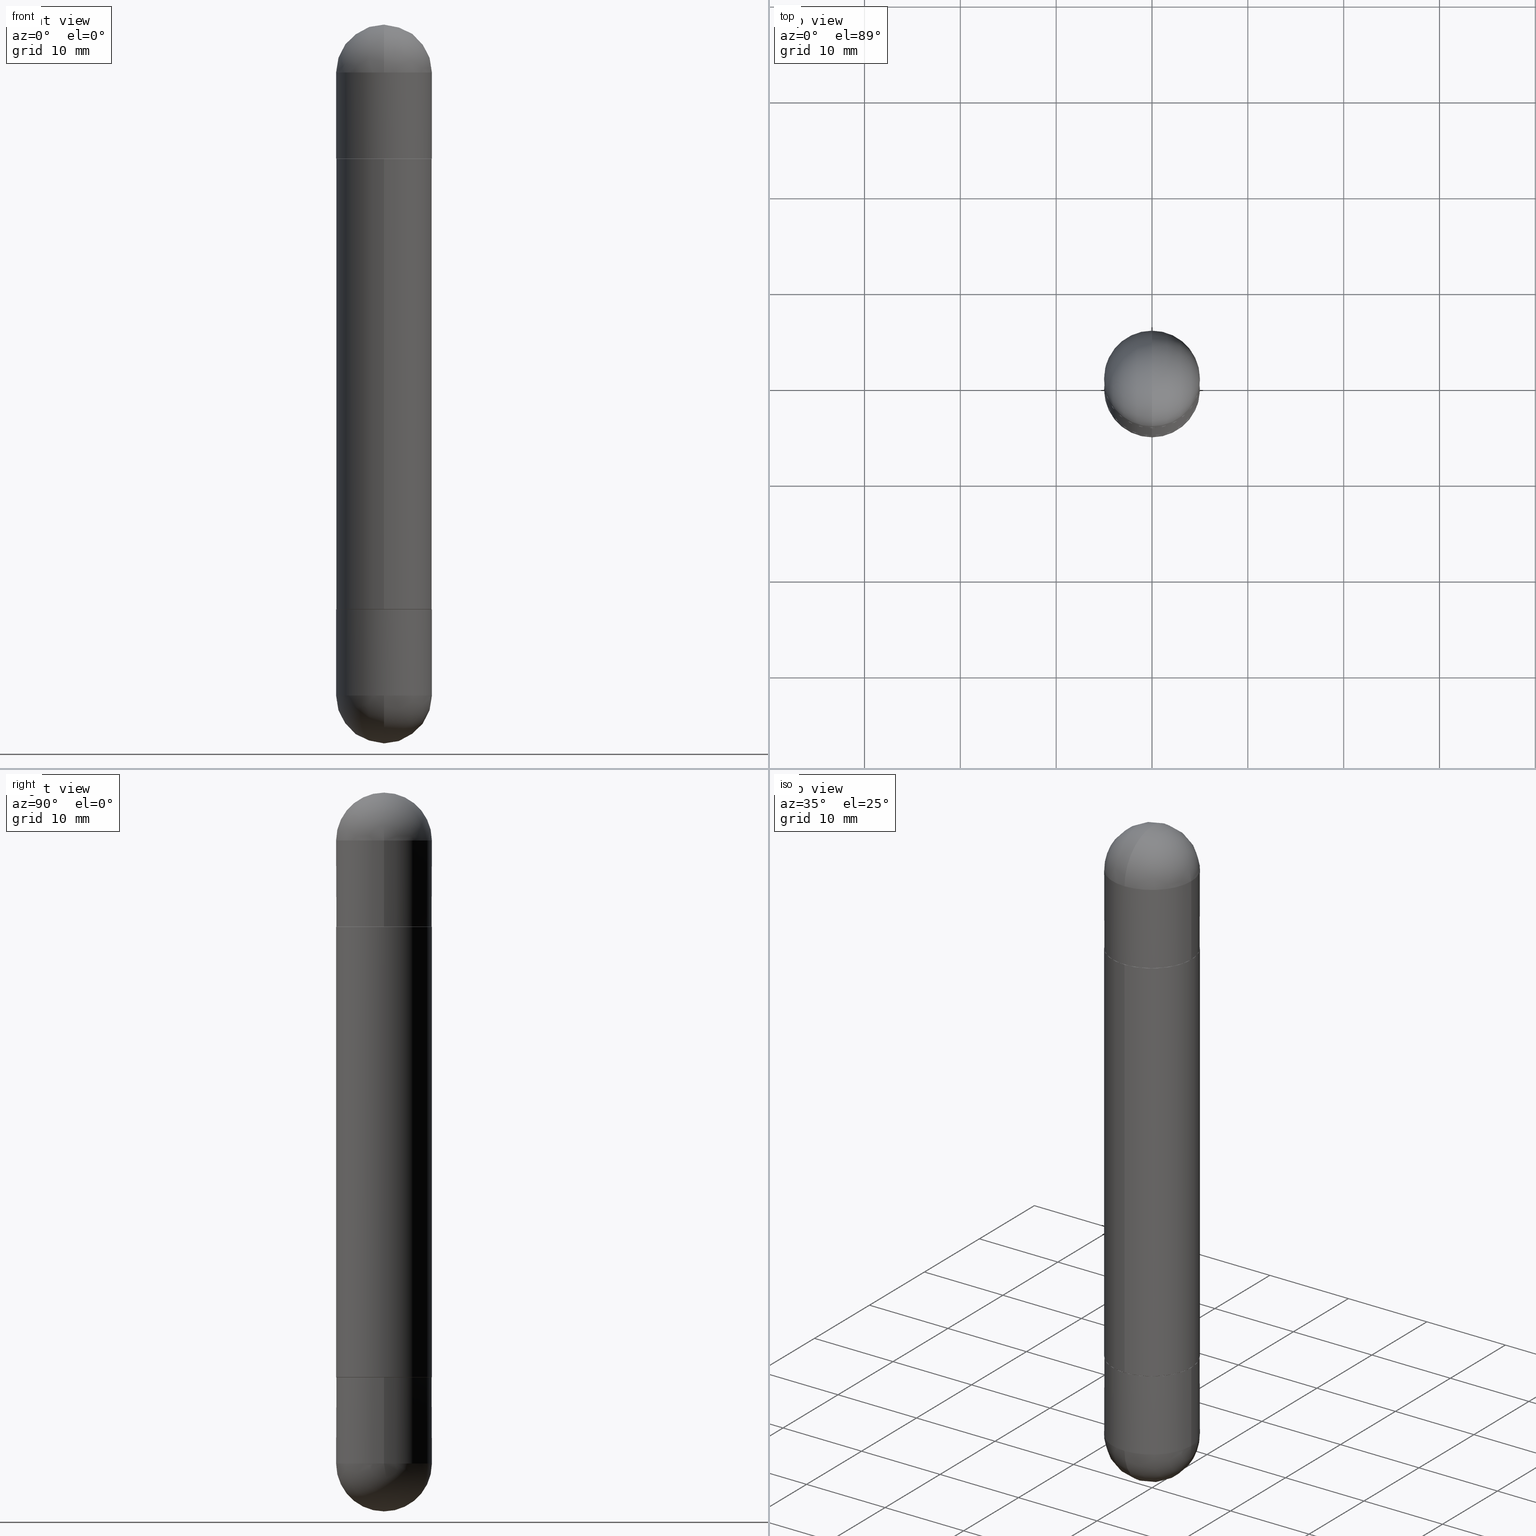
[diagram: canonical four-view strip — front | top / right | iso, engineering-drawing reading convention]
A machine part, canonical four-view strip (front | top / right | iso — engineering-drawing reading convention). The complete STEP part file that produces these views, byte-faithful:
ISO-10303-21;
HEADER;
FILE_DESCRIPTION (( 'STEP AP203' ),
    '1' );
FILE_NAME ('49002.STEP',
    '2024-03-01T12:50:12',
    ( '' ),
    ( '' ),
    'SwSTEP 2.0',
    'SolidWorks 2023',
    '' );
FILE_SCHEMA (( 'CONFIG_CONTROL_DESIGN' ));
ENDSEC;

DATA;
#1 = CIRCLE ( 'NONE', #315, 0.1958499999999999963 ) ;
#2 = DIRECTION ( 'NONE',  ( 1.000000000000000000, -6.982962677686266711E-15, 0.000000000000000000 ) ) ;
#3 = AXIS2_PLACEMENT_3D ( 'NONE', #754, #382, #304 ) ;
#4 = CIRCLE ( 'NONE', #82, 0.1968500000000001360 ) ;
#5 = VECTOR ( 'NONE', #93, 39.37007874015748854 ) ;
#6 = EDGE_LOOP ( 'NONE', ( #474, #777 ) ) ;
#7 = DIRECTION ( 'NONE',  ( -6.982962677686265922E-15, -1.000000000000000000, -3.487168743508122479E-15 ) ) ;
#8 = DIRECTION ( 'NONE',  ( -6.982962677686265922E-15, -1.000000000000000000, -3.487168743508122479E-15 ) ) ;
#9 = LINE ( 'NONE', #62, #702 ) ;
#10 = ORIENTED_EDGE ( 'NONE', *, *, #236, .T. ) ;
#11 = DIRECTION ( 'NONE',  ( -2.445468806185136597E-29, 3.491481338843145583E-15, 1.000000000000000000 ) ) ;
#12 = COORDINATED_UNIVERSAL_TIME_OFFSET ( 5, 0, .BEHIND. ) ;
#13 = DIRECTION ( 'NONE',  ( -2.445468806185136597E-29, 3.491481338843145583E-15, 1.000000000000000000 ) ) ;
#14 = AXIS2_PLACEMENT_3D ( 'NONE', #452, #387, #138 ) ;
#15 = ADVANCED_FACE ( 'NONE', ( #346 ), #608, .T. ) ;
#16 = VERTEX_POINT ( 'NONE', #668 ) ;
#17 = DIRECTION ( 'NONE',  ( 1.000000000000000000, -6.982962677686262766E-15, 0.000000000000000000 ) ) ;
#18 = PRODUCT_DEFINITION_SHAPE ( 'NONE', 'NONE',  #347 ) ;
#19 = ORIENTED_EDGE ( 'NONE', *, *, #199, .T. ) ;
#20 = PERSON_AND_ORGANIZATION ( #306, #429 ) ;
#21 = DIRECTION ( 'NONE',  ( -1.000000000000000000, 6.982962677686265922E-15, 4.883557194083112340E-29 ) ) ;
#22 = DIRECTION ( 'NONE',  ( -2.445468806185136597E-29, 3.491481338843145583E-15, 1.000000000000000000 ) ) ;
#23 = CC_DESIGN_PERSON_AND_ORGANIZATION_ASSIGNMENT ( #85, #323, ( #189 ) ) ;
#24 = CARTESIAN_POINT ( 'NONE',  ( 0.000000000000000000, 0.000000000000000000, -2.952799999999999869 ) ) ;
#25 = ADVANCED_FACE ( 'NONE', ( #168 ), #226, .T. ) ;
#26 = ORIENTED_EDGE ( 'NONE', *, *, #570, .F. ) ;
#27 = CONICAL_SURFACE ( 'NONE', #327, 0.1958499999999999963, 0.7853981633974311816 ) ;
#28 = EDGE_LOOP ( 'NONE', ( #690, #657, #328, #64 ) ) ;
#29 = AXIS2_PLACEMENT_3D ( 'NONE', #171, #601, #478 ) ;
#30 = PLANE ( 'NONE',  #539 ) ;
#31 = DIRECTION ( 'NONE',  ( -6.982962677686265922E-15, -1.000000000000000000, -3.487168743508122479E-15 ) ) ;
#32 = UNCERTAINTY_MEASURE_WITH_UNIT (LENGTH_MEASURE( 1.000000000000000082E-05 ), #71, 'distance_accuracy_value', 'NONE');
#33 = ORIENTED_EDGE ( 'NONE', *, *, #383, .F. ) ;
#34 = VERTEX_POINT ( 'NONE', #284 ) ;
#35 = ADVANCED_FACE ( 'NONE', ( #531 ), #468, .T. ) ;
#36 = CARTESIAN_POINT ( 'NONE',  ( 6.739589756405927064E-29, -9.622347995784766935E-15, -0.1968499999999998307 ) ) ;
#37 = ORIENTED_EDGE ( 'NONE', *, *, #471, .F. ) ;
#38 = AXIS2_PLACEMENT_3D ( 'NONE', #672, #102, #356 ) ;
#39 = CIRCLE ( 'NONE', #129, 0.1968500000000000527 ) ;
#40 = EDGE_CURVE ( 'NONE', #300, #729, #454, .T. ) ;
#41 = CARTESIAN_POINT ( 'NONE',  ( 0.000000000000000000, 0.000000000000000000, 0.000000000000000000 ) ) ;
#42 = EDGE_LOOP ( 'NONE', ( #281, #613, #626, #185 ) ) ;
#43 = AXIS2_PLACEMENT_3D ( 'NONE', #473, #735, #170 ) ;
#44 = DIRECTION ( 'NONE',  ( -2.445122675538663184E-29, 3.491977017629428547E-15, -1.000000000000000000 ) ) ;
#45 = EDGE_LOOP ( 'NONE', ( #262, #402, #817, #730 ) ) ;
#46 = CARTESIAN_POINT ( 'NONE',  ( 5.873037884934223228E-29, -8.385141583365697263E-15, -0.5512000000000001343 ) ) ;
#47 = FACE_OUTER_BOUND ( 'NONE', #28, .T. ) ;
#48 = EDGE_LOOP ( 'NONE', ( #227, #671, #477, #475 ) ) ;
#49 = ORIENTED_EDGE ( 'NONE', *, *, #195, .T. ) ;
#50 = EDGE_CURVE ( 'NONE', #412, #401, #192, .T. ) ;
#51 = ORIENTED_EDGE ( 'NONE', *, *, #523, .F. ) ;
#52 = LINE ( 'NONE', #296, #713 ) ;
#53 = DIRECTION ( 'NONE',  ( 1.000000000000000000, -6.982962677686265922E-15, 4.883557194083112340E-29 ) ) ;
#54 = SPHERICAL_SURFACE ( 'NONE', #74, 0.1968500000000001915 ) ;
#55 = EDGE_LOOP ( 'NONE', ( #797, #791, #165, #136 ) ) ;
#56 = EDGE_CURVE ( 'NONE', #682, #611, #526, .T. ) ;
#57 = EDGE_LOOP ( 'NONE', ( #350, #341, #720, #472 ) ) ;
#58 = EDGE_LOOP ( 'NONE', ( #228, #175, #51, #49, #795 ) ) ;
#59 = DIRECTION ( 'NONE',  ( 0.000000000000000000, 0.000000000000000000, 1.000000000000000000 ) ) ;
#60 = ORIENTED_EDGE ( 'NONE', *, *, #305, .T. ) ;
#61 = VECTOR ( 'NONE', #699, 39.37007874015748143 ) ;
#62 = CARTESIAN_POINT ( 'NONE',  ( 1.343628532863613179E-15, 0.1958499999999916141, -0.5511999999999991351 ) ) ;
#63 = ORIENTED_EDGE ( 'NONE', *, *, #422, .T. ) ;
#64 = ORIENTED_EDGE ( 'NONE', *, *, #581, .T. ) ;
#65 = FACE_OUTER_BOUND ( 'NONE', #223, .T. ) ;
#66 = EDGE_CURVE ( 'NONE', #729, #300, #491, .T. ) ;
#67 = FACE_OUTER_BOUND ( 'NONE', #560, .T. ) ;
#68 = ADVANCED_FACE ( 'NONE', ( #240 ), #150, .T. ) ;
#69 = DIRECTION ( 'NONE',  ( 1.000000000000000000, -6.982962677686266711E-15, 0.000000000000000000 ) ) ;
#70 = VERTEX_POINT ( 'NONE', #212 ) ;
#71 =( CONVERSION_BASED_UNIT ( 'INCH', #487 ) LENGTH_UNIT ( ) NAMED_UNIT ( #373 ) );
#72 = CYLINDRICAL_SURFACE ( 'NONE', #582, 0.1968500000000001360 ) ;
#73 = AXIS2_PLACEMENT_3D ( 'NONE', #561, #818, #123 ) ;
#74 = AXIS2_PLACEMENT_3D ( 'NONE', #124, #193, #431 ) ;
#75 = AXIS2_PLACEMENT_3D ( 'NONE', #612, #180, #592 ) ;
#76 = CYLINDRICAL_SURFACE ( 'NONE', #299, 0.1968500000000000527 ) ;
#77 = PERSON_AND_ORGANIZATION ( #306, #429 ) ;
#78 = DIRECTION ( 'NONE',  ( -6.982962677686265922E-15, -1.000000000000000000, -3.487168743508122479E-15 ) ) ;
#79 = PERSON_AND_ORGANIZATION ( #306, #429 ) ;
#80 = DIRECTION ( 'NONE',  ( 1.000000000000000000, -6.982962677686266711E-15, 0.000000000000000000 ) ) ;
#81 = VECTOR ( 'NONE', #575, 39.37007874015748143 ) ;
#82 = AXIS2_PLACEMENT_3D ( 'NONE', #665, #421, #799 ) ;
#83 = CIRCLE ( 'NONE', #73, 0.1968500000000001915 ) ;
#84 = ORIENTED_EDGE ( 'NONE', *, *, #139, .T. ) ;
#85 = PERSON_AND_ORGANIZATION ( #306, #429 ) ;
#86 = CARTESIAN_POINT ( 'NONE',  ( 0.000000000000000000, 0.000000000000000000, -2.952799999999999869 ) ) ;
#87 = EDGE_LOOP ( 'NONE', ( #695, #692, #310, #800, #535 ) ) ;
#88 = EDGE_CURVE ( 'NONE', #660, #519, #127, .T. ) ;
#89 = CARTESIAN_POINT ( 'NONE',  ( 6.739589756405927064E-29, -9.622347995784766935E-15, -2.755949999999999900 ) ) ;
#90 = EDGE_LOOP ( 'NONE', ( #154, #120, #462, #733, #617 ) ) ;
#91 = DIRECTION ( 'NONE',  ( 1.000000000000000000, -6.982962677686262766E-15, 0.000000000000000000 ) ) ;
#92 = AXIS2_PLACEMENT_3D ( 'NONE', #378, #558, #638 ) ;
#93 = DIRECTION ( 'NONE',  ( -4.937700262164462845E-15, -0.7071067811865329178, -0.7071067811865620056 ) ) ;
#94 = DIRECTION ( 'NONE',  ( 4.851104656540880656E-15, 0.7071067811865378028, -0.7071067811865571207 ) ) ;
#95 = CARTESIAN_POINT ( 'NONE',  ( -1.374596203102542397E-15, -0.1968500000000001360, -2.952800000000000313 ) ) ;
#96 = DIRECTION ( 'NONE',  ( 1.000000000000000000, -6.982962677686266711E-15, 0.000000000000000000 ) ) ;
#97 = ORIENTED_EDGE ( 'NONE', *, *, #427, .F. ) ;
#98 = DIRECTION ( 'NONE',  ( 2.445468806185136597E-29, -3.491481338843145583E-15, 1.000000000000000000 ) ) ;
#99 = ORIENTED_EDGE ( 'NONE', *, *, #585, .F. ) ;
#100 = AXIS2_PLACEMENT_3D ( 'NONE', #573, #542, #808 ) ;
#101 = CIRCLE ( 'NONE', #455, 0.1968500000000000527 ) ;
#102 = DIRECTION ( 'NONE',  ( 1.000000000000000000, -6.860497997771530774E-15, -4.840798879624142912E-29 ) ) ;
#103 = DIRECTION ( 'NONE',  ( 1.000000000000000000, -6.982962677686265922E-15, -4.883557194083112340E-29 ) ) ;
#104 = AXIS2_PLACEMENT_3D ( 'NONE', #330, #460, #806 ) ;
#105 = FACE_OUTER_BOUND ( 'NONE', #153, .T. ) ;
#106 = APPROVAL ( #200, 'UNSPECIFIED' ) ;
#107 = DIRECTION ( 'NONE',  ( -6.982962677686265133E-15, -1.000000000000000000, 4.163344669033668535E-15 ) ) ;
#108 = EDGE_CURVE ( 'NONE', #497, #464, #753, .T. ) ;
#109 = CARTESIAN_POINT ( 'NONE',  ( 1.350489030861326809E-15, 0.1968500000000001360, -2.952799999999998981 ) ) ;
#110 = DIRECTION ( 'NONE',  ( -2.445468806185136597E-29, 3.491481338843145583E-15, 1.000000000000000000 ) ) ;
#111 = EDGE_LOOP ( 'NONE', ( #517, #99 ) ) ;
#112 = VERTEX_POINT ( 'NONE', #133 ) ;
#113 = EDGE_LOOP ( 'NONE', ( #174, #775, #205, #122 ) ) ;
#114 = CYLINDRICAL_SURFACE ( 'NONE', #621, 0.1968500000000000527 ) ;
#115 = EDGE_LOOP ( 'NONE', ( #140, #750 ) ) ;
#116 = FACE_OUTER_BOUND ( 'NONE', #57, .T. ) ;
#117 = AXIS2_PLACEMENT_3D ( 'NONE', #470, #282, #343 ) ;
#118 = APPROVAL_PERSON_ORGANIZATION ( #79, #433, #572 ) ;
#119 = CARTESIAN_POINT ( 'NONE',  ( 3.609979118165281973E-29, -5.155554868828087801E-15, -1.476399999999999935 ) ) ;
#120 = ORIENTED_EDGE ( 'NONE', *, *, #637, .T. ) ;
#121 = CARTESIAN_POINT ( 'NONE',  ( 0.000000000000000000, 0.000000000000000000, -1.476399999999999935 ) ) ;
#122 = ORIENTED_EDGE ( 'NONE', *, *, #383, .T. ) ;
#123 = DIRECTION ( 'NONE',  ( -6.982962677686265133E-15, -1.000000000000000000, 0.000000000000000000 ) ) ;
#124 = CARTESIAN_POINT ( 'NONE',  ( 6.408469978492040817E-29, -1.009653036392481565E-14, -0.1968499999999998307 ) ) ;
#125 = FACE_OUTER_BOUND ( 'NONE', #48, .T. ) ;
#126 = DIRECTION ( 'NONE',  ( -4.937700262164462845E-15, -0.7071067811865329178, 0.7071067811865620056 ) ) ;
#127 = CIRCLE ( 'NONE', #609, 0.1968500000000003303 ) ;
#128 = CARTESIAN_POINT ( 'NONE',  ( -0.1968500000000000527, -7.605041414231473522E-15, -2.755949999999999900 ) ) ;
#129 = AXIS2_PLACEMENT_3D ( 'NONE', #546, #98, #177 ) ;
#130 = AXIS2_PLACEMENT_3D ( 'NONE', #683, #501, #7 ) ;
#131 = CC_DESIGN_PERSON_AND_ORGANIZATION_ASSIGNMENT ( #579, #525, ( #189 ) ) ;
#132 = SECURITY_CLASSIFICATION_LEVEL ( 'unclassified' ) ;
#133 = CARTESIAN_POINT ( 'NONE',  ( 1.374596203102607873E-15, 0.1968499999999902550, -0.1968499999999991645 ) ) ;
#134 = EDGE_CURVE ( 'NONE', #660, #298, #312, .T. ) ;
#135 = DIRECTION ( 'NONE',  ( -1.000000000000000000, 6.982962677686265922E-15, -4.883557194083112340E-29 ) ) ;
#136 = ORIENTED_EDGE ( 'NONE', *, *, #747, .F. ) ;
#137 = MECHANICAL_CONTEXT ( 'NONE', #614, 'mechanical' ) ;
#138 = DIRECTION ( 'NONE',  ( 6.982962677686265922E-15, 1.000000000000000000, 3.469453890861392812E-15 ) ) ;
#139 = EDGE_CURVE ( 'NONE', #464, #497, #255, .T. ) ;
#140 = ORIENTED_EDGE ( 'NONE', *, *, #670, .T. ) ;
#141 = DATE_AND_TIME ( #704, #381 ) ;
#142 = PRODUCT ( '49002', '49002', '', ( #137 ) ) ;
#143 = CARTESIAN_POINT ( 'NONE',  ( 1.350489030861385580E-15, 0.1968499999999950012, -1.476399999999999935 ) ) ;
#144 = CIRCLE ( 'NONE', #100, 0.1968500000000000527 ) ;
#145 = AXIS2_PLACEMENT_3D ( 'NONE', #773, #769, #80 ) ;
#146 = EDGE_CURVE ( 'NONE', #552, #396, #144, .T. ) ;
#147 = LOCAL_TIME ( 7, 50, 12.00000000000000000, #590 ) ;
#148 = ORIENTED_EDGE ( 'NONE', *, *, #134, .F. ) ;
#149 = VERTEX_POINT ( 'NONE', #741 ) ;
#150 = CONICAL_SURFACE ( 'NONE', #740, 0.1958499999999999963, 0.7853981633974311816 ) ;
#151 = APPROVAL_STATUS ( 'not_yet_approved' ) ;
#152 = CARTESIAN_POINT ( 'NONE',  ( 6.898277487190832498E-29, -1.077177487935548192E-14, -2.952800000000000313 ) ) ;
#153 = EDGE_LOOP ( 'NONE', ( #515, #424, #33, #442 ) ) ;
#154 = ORIENTED_EDGE ( 'NONE', *, *, #234, .F. ) ;
#155 = EDGE_CURVE ( 'NONE', #220, #680, #230, .T. ) ;
#156 = SPHERICAL_SURFACE ( 'NONE', #339, 0.1968500000000001915 ) ;
#157 = ORIENTED_EDGE ( 'NONE', *, *, #687, .F. ) ;
#158 = CARTESIAN_POINT ( 'NONE',  ( 6.739589756405927064E-29, -9.622347995784766935E-15, -0.1968499999999998307 ) ) ;
#159 = DIRECTION ( 'NONE',  ( -2.445122675538663184E-29, 3.491977017629428547E-15, -1.000000000000000000 ) ) ;
#160 = VECTOR ( 'NONE', #337, 39.37007874015748143 ) ;
#161 = DIRECTION ( 'NONE',  ( 1.000000000000000000, -6.982962677686266711E-15, 0.000000000000000000 ) ) ;
#162 = LINE ( 'NONE', #232, #495 ) ;
#163 = EDGE_CURVE ( 'NONE', #270, #624, #162, .T. ) ;
#164 = DIRECTION ( 'NONE',  ( -2.445468806185136597E-29, 3.491481338843145583E-15, -1.000000000000000000 ) ) ;
#165 = ORIENTED_EDGE ( 'NONE', *, *, #206, .F. ) ;
#166 = DIRECTION ( 'NONE',  ( 2.445468806185136597E-29, -3.491481338843145583E-15, 1.000000000000000000 ) ) ;
#167 = DIRECTION ( 'NONE',  ( -2.445468806185136877E-29, 3.491481338843145188E-15, -1.000000000000000000 ) ) ;
#168 = FACE_OUTER_BOUND ( 'NONE', #411, .T. ) ;
#169 = ORIENTED_EDGE ( 'NONE', *, *, #248, .T. ) ;
#170 = DIRECTION ( 'NONE',  ( 1.000000000000000000, -6.982962677686262766E-15, 0.000000000000000000 ) ) ;
#171 = CARTESIAN_POINT ( 'NONE',  ( 5.873037884934223228E-29, -8.385141583365697263E-15, -0.5512000000000001343 ) ) ;
#172 = VERTEX_POINT ( 'NONE', #652 ) ;
#173 = EDGE_CURVE ( 'NONE', #149, #256, #722, .T. ) ;
#174 = ORIENTED_EDGE ( 'NONE', *, *, #678, .F. ) ;
#175 = ORIENTED_EDGE ( 'NONE', *, *, #628, .F. ) ;
#176 = CIRCLE ( 'NONE', #635, 0.1968500000000003303 ) ;
#177 = DIRECTION ( 'NONE',  ( 1.000000000000000000, -6.982962677686266711E-15, 0.000000000000000000 ) ) ;
#178 = CARTESIAN_POINT ( 'NONE',  ( 6.408469978492040817E-29, -1.009653036392481565E-14, -0.1968499999999998307 ) ) ;
#179 = CIRCLE ( 'NONE', #646, 0.1968500000000001915 ) ;
#180 = DIRECTION ( 'NONE',  ( -2.445122675538663184E-29, 3.491977017629428547E-15, 1.000000000000000000 ) ) ;
#181 = CARTESIAN_POINT ( 'NONE',  ( 5.872206617573653302E-29, -8.386332005538834175E-15, -0.5511999999999998012 ) ) ;
#182 = FACE_OUTER_BOUND ( 'NONE', #111, .T. ) ;
#183 = EDGE_CURVE ( 'NONE', #680, #270, #458, .T. ) ;
#184 = DIRECTION ( 'NONE',  ( -2.445122675538662904E-29, 3.491977017629428547E-15, -1.000000000000000000 ) ) ;
#185 = ORIENTED_EDGE ( 'NONE', *, *, #88, .T. ) ;
#186 = CARTESIAN_POINT ( 'NONE',  ( 0.1968500000000000527, -1.037834099267777529E-14, -0.1968499999999998307 ) ) ;
#187 = FACE_OUTER_BOUND ( 'NONE', #804, .T. ) ;
#188 = CIRCLE ( 'NONE', #29, 0.1968500000000000250 ) ;
#189 = PRODUCT_DEFINITION_FORMATION_WITH_SPECIFIED_SOURCE ( 'ANY', '', #142, .NOT_KNOWN. ) ;
#190 = DIRECTION ( 'NONE',  ( 5.024295867787975615E-15, 0.7071067811865378028, 0.7071067811865571207 ) ) ;
#191 = EDGE_CURVE ( 'NONE', #389, #298, #595, .T. ) ;
#192 = CIRCLE ( 'NONE', #355, 0.1968500000000001915 ) ;
#193 = DIRECTION ( 'NONE',  ( 1.000000000000000000, -6.982962677686265922E-15, -4.883557194083112340E-29 ) ) ;
#194 = DIRECTION ( 'NONE',  ( 4.851104656540880656E-15, 0.7071067811865378028, -0.7071067811865571207 ) ) ;
#195 = EDGE_CURVE ( 'NONE', #34, #300, #52, .T. ) ;
#196 = LINE ( 'NONE', #438, #241 ) ;
#197 = DIRECTION ( 'NONE',  ( 2.445122675538663184E-29, -3.491977017629428547E-15, 1.000000000000000000 ) ) ;
#198 = CARTESIAN_POINT ( 'NONE',  ( 1.391597947986214761E-15, 0.1958499999999916141, -2.401600000000000623 ) ) ;
#199 = EDGE_CURVE ( 'NONE', #363, #149, #214, .T. ) ;
#200 = APPROVAL_STATUS ( 'not_yet_approved' ) ;
#201 = VECTOR ( 'NONE', #375, 39.37007874015748854 ) ;
#202 = FACE_OUTER_BOUND ( 'NONE', #45, .T. ) ;
#203 = AXIS2_PLACEMENT_3D ( 'NONE', #685, #625, #307 ) ;
#204 = DIRECTION ( 'NONE',  ( -2.445468806185136597E-29, 3.491481338843145583E-15, 1.000000000000000000 ) ) ;
#205 = ORIENTED_EDGE ( 'NONE', *, *, #134, .T. ) ;
#206 = EDGE_CURVE ( 'NONE', #353, #408, #416, .T. ) ;
#207 = APPLICATION_PROTOCOL_DEFINITION ( 'international standard', 'config_control_design', 1994, #222 ) ;
#208 = DIRECTION ( 'NONE',  ( -2.445468806185136597E-29, 3.491481338843145583E-15, 1.000000000000000000 ) ) ;
#209 = EDGE_CURVE ( 'NONE', #624, #437, #785, .T. ) ;
#210 = DESIGN_CONTEXT ( 'detailed design', #222, 'design' ) ;
#211 = ADVANCED_FACE ( 'NONE', ( #105 ), #379, .T. ) ;
#212 = CARTESIAN_POINT ( 'NONE',  ( 1.395150661665017040E-15, 0.1958499999999916141, -2.401600000000000623 ) ) ;
#213 = CYLINDRICAL_SURFACE ( 'NONE', #467, 0.1968500000000001360 ) ;
#214 = CIRCLE ( 'NONE', #239, 0.1958499999999999963 ) ;
#215 = AXIS2_PLACEMENT_3D ( 'NONE', #278, #273, #522 ) ;
#216 = ORIENTED_EDGE ( 'NONE', *, *, #584, .T. ) ;
#217 = AXIS2_PLACEMENT_3D ( 'NONE', #302, #738, #107 ) ;
#218 = SPHERICAL_SURFACE ( 'NONE', #14, 0.1968500000000001915 ) ;
#219 = EDGE_CURVE ( 'NONE', #519, #660, #351, .T. ) ;
#220 = VERTEX_POINT ( 'NONE', #392 ) ;
#221 = DIRECTION ( 'NONE',  ( 2.445122675538663184E-29, -3.491977017629428547E-15, 1.000000000000000000 ) ) ;
#222 = APPLICATION_CONTEXT ( 'configuration controlled 3d designs of mechanical parts and assemblies' ) ;
#223 = EDGE_LOOP ( 'NONE', ( #569, #749, #286, #148 ) ) ;
#224 = EDGE_CURVE ( 'NONE', #220, #552, #179, .T. ) ;
#225 = CARTESIAN_POINT ( 'NONE',  ( 5.869761494898114064E-29, -8.382840028521204058E-15, -0.5522000000000002462 ) ) ;
#226 = SPHERICAL_SURFACE ( 'NONE', #540, 0.1968500000000001915 ) ;
#227 = ORIENTED_EDGE ( 'NONE', *, *, #360, .F. ) ;
#228 = ORIENTED_EDGE ( 'NONE', *, *, #637, .F. ) ;
#229 =( GEOMETRIC_REPRESENTATION_CONTEXT ( 3 ) GLOBAL_UNCERTAINTY_ASSIGNED_CONTEXT ( ( #32 ) ) GLOBAL_UNIT_ASSIGNED_CONTEXT ( ( #71, #252, #551 ) ) REPRESENTATION_CONTEXT ( 'NONE', 'WORKASPACE' ) );
#230 = CIRCLE ( 'NONE', #562, 0.1968500000000001915 ) ;
#231 = LINE ( 'NONE', #109, #482 ) ;
#232 = CARTESIAN_POINT ( 'NONE',  ( 0.1968500000000000527, -1.374596203102542003E-15, -2.952799999999999869 ) ) ;
#233 = MANIFOLD_SOLID_BREP ( 'Mirror4[1]', #744 ) ;
#234 = EDGE_CURVE ( 'NONE', #243, #611, #289, .T. ) ;
#235 = PLANE ( 'NONE',  #742 ) ;
#236 = EDGE_CURVE ( 'NONE', #270, #552, #480, .T. ) ;
#237 = CARTESIAN_POINT ( 'NONE',  ( 5.872206617573653302E-29, -8.386332005538834175E-15, -2.401599999999999735 ) ) ;
#238 = DIRECTION ( 'NONE',  ( 1.000000000000000000, -6.982962677686266711E-15, 0.000000000000000000 ) ) ;
#239 = AXIS2_PLACEMENT_3D ( 'NONE', #600, #333, #31 ) ;
#240 = FACE_OUTER_BOUND ( 'NONE', #42, .T. ) ;
#241 = VECTOR ( 'NONE', #483, 39.37007874015748143 ) ;
#242 = DIRECTION ( 'NONE',  ( -1.000000000000000000, 0.000000000000000000, 0.000000000000000000 ) ) ;
#243 = VERTEX_POINT ( 'NONE', #598 ) ;
#244 = CARTESIAN_POINT ( 'NONE',  ( 6.739589756405927064E-29, -9.622347995784766935E-15, -2.755949999999999900 ) ) ;
#245 = ORIENTED_EDGE ( 'NONE', *, *, #224, .T. ) ;
#246 = EDGE_LOOP ( 'NONE', ( #414, #616 ) ) ;
#247 = DIRECTION ( 'NONE',  ( -2.445468806185136597E-29, 3.491481338843145583E-15, -1.000000000000000000 ) ) ;
#248 = EDGE_CURVE ( 'NONE', #256, #479, #790, .T. ) ;
#249 = CARTESIAN_POINT ( 'NONE',  ( 0.1968500000000000527, -1.374596203102542003E-15, 9.598753983154302260E-30 ) ) ;
#250 = PLANE ( 'NONE',  #770 ) ;
#251 = VECTOR ( 'NONE', #640, 39.37007874015748143 ) ;
#252 =( NAMED_UNIT ( * ) PLANE_ANGLE_UNIT ( ) SI_UNIT ( $, .RADIAN. ) );
#253 = CONICAL_SURFACE ( 'NONE', #280, 0.1958499999999999963, 0.7853981633974311816 ) ;
#254 = CARTESIAN_POINT ( 'NONE',  ( 5.872206617573653302E-29, -8.386332005538834175E-15, -2.401599999999999735 ) ) ;
#255 = CIRCLE ( 'NONE', #801, 0.1958499999999999963 ) ;
#256 = VERTEX_POINT ( 'NONE', #669 ) ;
#257 = EDGE_LOOP ( 'NONE', ( #84, #367 ) ) ;
#258 = SPHERICAL_SURFACE ( 'NONE', #494, 0.1968500000000001915 ) ;
#259 = DIRECTION ( 'NONE',  ( 2.445122675538663184E-29, -3.491977017629428547E-15, 1.000000000000000000 ) ) ;
#260 = EDGE_CURVE ( 'NONE', #370, #70, #1, .T. ) ;
#261 = CARTESIAN_POINT ( 'NONE',  ( 5.869761494898114064E-29, -8.382840028521204058E-15, -2.400599999999999401 ) ) ;
#262 = ORIENTED_EDGE ( 'NONE', *, *, #199, .F. ) ;
#263 = DATE_AND_TIME ( #520, #269 ) ;
#264 = CARTESIAN_POINT ( 'NONE',  ( 1.350489030861386763E-15, 0.1968499999999919203, -0.5521999999999994690 ) ) ;
#265 = ADVANCED_FACE ( 'NONE', ( #65 ), #72, .T. ) ;
#266 = DATE_TIME_ROLE ( 'creation_date' ) ;
#267 = VECTOR ( 'NONE', #94, 39.37007874015748854 ) ;
#268 = LINE ( 'NONE', #463, #267 ) ;
#269 = LOCAL_TIME ( 7, 50, 12.00000000000000000, #586 ) ;
#270 = VERTEX_POINT ( 'NONE', #186 ) ;
#271 = DIRECTION ( 'NONE',  ( 0.000000000000000000, 0.000000000000000000, 1.000000000000000000 ) ) ;
#272 = CARTESIAN_POINT ( 'NONE',  ( -1.367613240424796429E-15, -0.1958500000000084063, -0.5512000000000005784 ) ) ;
#273 = DIRECTION ( 'NONE',  ( -1.000000000000000000, 7.105427357601001070E-15, -4.926315508542082329E-29 ) ) ;
#274 = ORIENTED_EDGE ( 'NONE', *, *, #747, .T. ) ;
#275 = APPROVAL_STATUS ( 'not_yet_approved' ) ;
#276 = CARTESIAN_POINT ( 'NONE',  ( 5.873037884934223228E-29, -8.385141583365697263E-15, -2.401599999999999735 ) ) ;
#277 = APPROVAL_ROLE ( '' ) ;
#278 = CARTESIAN_POINT ( 'NONE',  ( 6.408469978492040817E-29, -1.009653036392481565E-14, -2.755949999999999900 ) ) ;
#279 = CIRCLE ( 'NONE', #430, 0.1958499999999999963 ) ;
#280 = AXIS2_PLACEMENT_3D ( 'NONE', #446, #705, #78 ) ;
#281 = ORIENTED_EDGE ( 'NONE', *, *, #376, .F. ) ;
#282 = DIRECTION ( 'NONE',  ( 2.445122675538663184E-29, -3.491977017629428547E-15, 1.000000000000000000 ) ) ;
#283 = DIRECTION ( 'NONE',  ( -6.982962677686265133E-15, -1.000000000000000000, -3.469453890861390051E-15 ) ) ;
#284 = CARTESIAN_POINT ( 'NONE',  ( 0.1968500000000000527, -1.037834099267777529E-14, -0.1968499999999998307 ) ) ;
#285 = CARTESIAN_POINT ( 'NONE',  ( -0.1968500000000000527, 1.350489030861326415E-15, -2.952799999999999869 ) ) ;
#286 = ORIENTED_EDGE ( 'NONE', *, *, #191, .T. ) ;
#287 = CLOSED_SHELL ( 'NONE', ( #602, #399, #756, #813, #404 ) ) ;
#288 = APPROVAL ( #275, 'UNSPECIFIED' ) ;
#289 = CIRCLE ( 'NONE', #606, 0.1968500000000000527 ) ;
#290 = ADVANCED_FACE ( 'NONE', ( #125 ), #27, .T. ) ;
#291 = DIRECTION ( 'NONE',  ( -2.445468806185136597E-29, 3.491481338843145583E-15, -1.000000000000000000 ) ) ;
#292 = CARTESIAN_POINT ( 'NONE',  ( 6.408469978492040817E-29, -1.009653036392481565E-14, -0.1968499999999998307 ) ) ;
#293 = DIRECTION ( 'NONE',  ( -2.445122675538663184E-29, 3.491977017629428547E-15, 1.000000000000000000 ) ) ;
#294 = DIRECTION ( 'NONE',  ( 2.445468806185136597E-29, -3.491481338843145583E-15, 1.000000000000000000 ) ) ;
#295 = CYLINDRICAL_SURFACE ( 'NONE', #755, 0.1968500000000000527 ) ;
#296 = CARTESIAN_POINT ( 'NONE',  ( 0.1968500000000000527, -1.374596203102542003E-15, -2.952799999999999869 ) ) ;
#297 = FACE_OUTER_BOUND ( 'NONE', #708, .T. ) ;
#298 = VERTEX_POINT ( 'NONE', #684 ) ;
#299 = AXIS2_PLACEMENT_3D ( 'NONE', #815, #247, #488 ) ;
#300 = VERTEX_POINT ( 'NONE', #309 ) ;
#301 = AXIS2_PLACEMENT_3D ( 'NONE', #615, #752, #303 ) ;
#302 = CARTESIAN_POINT ( 'NONE',  ( 5.869761494898114064E-29, -8.382840028521204058E-15, -2.400599999999999401 ) ) ;
#303 = DIRECTION ( 'NONE',  ( 1.000000000000000000, -6.982962677686266711E-15, 0.000000000000000000 ) ) ;
#304 = DIRECTION ( 'NONE',  ( -6.982962677686265922E-15, -1.000000000000000000, 4.184602492209747448E-15 ) ) ;
#305 = EDGE_CURVE ( 'NONE', #149, #363, #279, .T. ) ;
#306 = PERSON ( 'UNSPECIFIED', 'UNSPECIFIED', 'UNSPECIFIED', ('UNSPECIFIED'), ('UNSPECIFIED'), ('UNSPECIFIED') ) ;
#307 = DIRECTION ( 'NONE',  ( -1.000000000000000000, 6.982962677686265922E-15, -4.876176775795935793E-29 ) ) ;
#308 = ORIENTED_EDGE ( 'NONE', *, *, #155, .F. ) ;
#309 = CARTESIAN_POINT ( 'NONE',  ( 0.1968500000000000250, -9.759737786468237294E-15, -0.5512000000000001343 ) ) ;
#310 = ORIENTED_EDGE ( 'NONE', *, *, #585, .T. ) ;
#311 = CARTESIAN_POINT ( 'NONE',  ( 5.872206617573653302E-29, -8.386332005538834175E-15, -0.5511999999999998012 ) ) ;
#312 = LINE ( 'NONE', #502, #251 ) ;
#313 = CARTESIAN_POINT ( 'NONE',  ( 0.000000000000000000, 0.000000000000000000, -2.952799999999999869 ) ) ;
#314 = EDGE_CURVE ( 'NONE', #682, #112, #83, .T. ) ;
#315 = AXIS2_PLACEMENT_3D ( 'NONE', #805, #293, #633 ) ;
#316 = AXIS2_PLACEMENT_3D ( 'NONE', #225, #221, #283 ) ;
#317 = CIRCLE ( 'NONE', #301, 0.1968500000000000527 ) ;
#318 = DIRECTION ( 'NONE',  ( -6.982962677686265922E-15, -1.000000000000000000, -2.775563112689114723E-15 ) ) ;
#319 = LINE ( 'NONE', #620, #201 ) ;
#320 = DIRECTION ( 'NONE',  ( 1.000000000000000000, 0.000000000000000000, 0.000000000000000000 ) ) ;
#321 = CARTESIAN_POINT ( 'NONE',  ( 5.872206617573653302E-29, -8.386332005538834175E-15, -0.5511999999999998012 ) ) ;
#322 = CARTESIAN_POINT ( 'NONE',  ( 5.873037884934223228E-29, -8.385141583365697263E-15, -2.401599999999999735 ) ) ;
#323 = PERSON_AND_ORGANIZATION_ROLE ( 'design_supplier' ) ;
#324 = CIRCLE ( 'NONE', #647, 0.1968500000000000527 ) ;
#325 = CARTESIAN_POINT ( 'NONE',  ( -0.1968500000000000527, -7.653255758713905881E-15, -0.1968499999999998307 ) ) ;
#326 = LOCAL_TIME ( 7, 50, 12.00000000000000000, #504 ) ;
#327 = AXIS2_PLACEMENT_3D ( 'NONE', #254, #498, #503 ) ;
#328 = ORIENTED_EDGE ( 'NONE', *, *, #173, .T. ) ;
#329 = SHAPE_DEFINITION_REPRESENTATION ( #18, #643 ) ;
#330 = CARTESIAN_POINT ( 'NONE',  ( 6.739589756405927064E-29, -9.622347995784766935E-15, -0.1968499999999998307 ) ) ;
#331 = CARTESIAN_POINT ( 'NONE',  ( 5.869761494898114064E-29, -8.382840028521204058E-15, -0.5522000000000002462 ) ) ;
#332 = DIRECTION ( 'NONE',  ( -2.445122675538663184E-29, 3.491977017629428547E-15, -1.000000000000000000 ) ) ;
#333 = DIRECTION ( 'NONE',  ( 2.445122675538663184E-29, -3.491977017629428547E-15, 1.000000000000000000 ) ) ;
#334 = EDGE_CURVE ( 'NONE', #70, #370, #428, .T. ) ;
#335 = EDGE_LOOP ( 'NONE', ( #594, #554, #788, #524 ) ) ;
#336 = ORIENTED_EDGE ( 'NONE', *, *, #581, .F. ) ;
#337 = DIRECTION ( 'NONE',  ( -2.445468806185136877E-29, 3.491481338843145188E-15, 1.000000000000000000 ) ) ;
#338 = ADVANCED_FACE ( 'NONE', ( #700 ), #426, .F. ) ;
#339 = AXIS2_PLACEMENT_3D ( 'NONE', #385, #135, #456 ) ;
#340 = APPROVAL_PERSON_ORGANIZATION ( #709, #106, #277 ) ;
#341 = ORIENTED_EDGE ( 'NONE', *, *, #376, .T. ) ;
#342 = DIRECTION ( 'NONE',  ( -2.445468806185136877E-29, 3.491481338843145188E-15, -1.000000000000000000 ) ) ;
#343 = DIRECTION ( 'NONE',  ( -6.982962677686265133E-15, -1.000000000000000000, -3.469453890861390051E-15 ) ) ;
#344 = FACE_OUTER_BOUND ( 'NONE', #6, .T. ) ;
#345 = ADVANCED_FACE ( 'NONE', ( #439 ), #76, .T. ) ;
#346 = FACE_OUTER_BOUND ( 'NONE', #113, .T. ) ;
#347 = PRODUCT_DEFINITION ( 'UNKNOWN', '', #189, #210 ) ;
#348 = ADVANCED_FACE ( 'NONE', ( #182 ), #250, .F. ) ;
#349 = FACE_OUTER_BOUND ( 'NONE', #257, .T. ) ;
#350 = ORIENTED_EDGE ( 'NONE', *, *, #108, .F. ) ;
#351 = CIRCLE ( 'NONE', #634, 0.1968500000000003303 ) ;
#352 = VECTOR ( 'NONE', #190, 39.37007874015748854 ) ;
#353 = VERTEX_POINT ( 'NONE', #128 ) ;
#354 = ORIENTED_EDGE ( 'NONE', *, *, #436, .T. ) ;
#355 = AXIS2_PLACEMENT_3D ( 'NONE', #550, #53, #810 ) ;
#356 = DIRECTION ( 'NONE',  ( 6.860497997771529985E-15, 1.000000000000000000, 0.000000000000000000 ) ) ;
#357 = CARTESIAN_POINT ( 'NONE',  ( 0.1968500000000000250, -9.759737786468237294E-15, -2.401599999999999735 ) ) ;
#358 = ORIENTED_EDGE ( 'NONE', *, *, #314, .T. ) ;
#359 = EDGE_CURVE ( 'NONE', #464, #660, #319, .T. ) ;
#360 = EDGE_CURVE ( 'NONE', #70, #389, #761, .T. ) ;
#361 = DIRECTION ( 'NONE',  ( -2.445122675538662904E-29, 3.491977017629428547E-15, -1.000000000000000000 ) ) ;
#362 = DIRECTION ( 'NONE',  ( 2.445468806185136597E-29, -3.491481338843145583E-15, 1.000000000000000000 ) ) ;
#363 = VERTEX_POINT ( 'NONE', #631 ) ;
#364 = DIRECTION ( 'NONE',  ( -6.982962677686265133E-15, -1.000000000000000000, 4.163344669033668535E-15 ) ) ;
#365 = ADVANCED_FACE ( 'NONE', ( #746 ), #114, .T. ) ;
#366 = AXIS2_PLACEMENT_3D ( 'NONE', #89, #208, #712 ) ;
#367 = ORIENTED_EDGE ( 'NONE', *, *, #108, .T. ) ;
#368 = CLOSED_SHELL ( 'NONE', ( #35, #435, #591, #338, #345 ) ) ;
#369 = DIRECTION ( 'NONE',  ( -6.982962677686265922E-15, -1.000000000000000000, -3.491977017629428547E-15 ) ) ;
#370 = VERTEX_POINT ( 'NONE', #568 ) ;
#371 = DIRECTION ( 'NONE',  ( -1.000000000000000000, 0.000000000000000000, 0.000000000000000000 ) ) ;
#372 = ORIENTED_EDGE ( 'NONE', *, *, #146, .T. ) ;
#373 = DIMENSIONAL_EXPONENTS ( 1.000000000000000000, 0.000000000000000000, 0.000000000000000000, 0.000000000000000000, 0.000000000000000000, 0.000000000000000000, 0.000000000000000000 ) ;
#374 = EDGE_CURVE ( 'NONE', #408, #514, #101, .T. ) ;
#375 = DIRECTION ( 'NONE',  ( -4.937700262164462845E-15, -0.7071067811865329178, -0.7071067811865620056 ) ) ;
#376 = EDGE_CURVE ( 'NONE', #497, #519, #9, .T. ) ;
#377 = LINE ( 'NONE', #249, #61 ) ;
#378 = CARTESIAN_POINT ( 'NONE',  ( 1.374596203102600181E-15, 0.1968499999999916150, -0.5511999999999992461 ) ) ;
#379 = CONICAL_SURFACE ( 'NONE', #75, 0.1958499999999999963, 0.7853981633974311816 ) ;
#380 = APPROVAL_DATE_TIME ( #263, #288 ) ;
#381 = LOCAL_TIME ( 7, 50, 12.00000000000000000, #768 ) ;
#382 = DIRECTION ( 'NONE',  ( -2.445122675538663184E-29, 3.491977017629428547E-15, 1.000000000000000000 ) ) ;
#383 = EDGE_CURVE ( 'NONE', #298, #389, #176, .T. ) ;
#384 = APPROVAL_ROLE ( '' ) ;
#385 = CARTESIAN_POINT ( 'NONE',  ( 6.408469978492040817E-29, -1.009653036392481565E-14, -2.755949999999999900 ) ) ;
#386 = PERSON_AND_ORGANIZATION ( #306, #429 ) ;
#387 = DIRECTION ( 'NONE',  ( 1.000000000000000000, -6.982962677686265922E-15, -4.883557194083112340E-29 ) ) ;
#388 = EDGE_CURVE ( 'NONE', #500, #479, #509, .T. ) ;
#389 = VERTEX_POINT ( 'NONE', #627 ) ;
#390 = DATE_AND_TIME ( #644, #771 ) ;
#391 = AXIS2_PLACEMENT_3D ( 'NONE', #567, #197, #8 ) ;
#392 = CARTESIAN_POINT ( 'NONE',  ( 6.898277487190832498E-29, -1.077177487935548192E-14, 3.414809992080329023E-16 ) ) ;
#393 = AXIS2_PLACEMENT_3D ( 'NONE', #610, #103, #605 ) ;
#394 = DIRECTION ( 'NONE',  ( -6.982962677686265922E-15, -1.000000000000000000, -2.775563112689114723E-15 ) ) ;
#395 = AXIS2_PLACEMENT_3D ( 'NONE', #728, #164, #603 ) ;
#396 = VERTEX_POINT ( 'NONE', #325 ) ;
#397 = CALENDAR_DATE ( 2024, 1, 3 ) ;
#398 = CYLINDRICAL_SURFACE ( 'NONE', #492, 0.1968500000000000527 ) ;
#399 = ADVANCED_FACE ( 'NONE', ( #583 ), #156, .T. ) ;
#400 = DIRECTION ( 'NONE',  ( 1.000000000000000000, -6.982962677686266711E-15, 4.876176775795935793E-29 ) ) ;
#401 = VERTEX_POINT ( 'NONE', #716 ) ;
#402 = ORIENTED_EDGE ( 'NONE', *, *, #545, .T. ) ;
#403 = DIRECTION ( 'NONE',  ( 2.445468806185136597E-29, -3.491481338843145583E-15, 1.000000000000000000 ) ) ;
#404 = ADVANCED_FACE ( 'NONE', ( #461 ), #398, .T. ) ;
#405 = CARTESIAN_POINT ( 'NONE',  ( 0.1968500000000000250, -9.759737786468237294E-15, -0.5512000000000001343 ) ) ;
#406 = AXIS2_PLACEMENT_3D ( 'NONE', #322, #204, #91 ) ;
#407 = CC_DESIGN_SECURITY_CLASSIFICATION ( #648, ( #189 ) ) ;
#408 = VERTEX_POINT ( 'NONE', #787 ) ;
#409 = CYLINDRICAL_SURFACE ( 'NONE', #444, 0.1968500000000000527 ) ;
#410 = EDGE_CURVE ( 'NONE', #630, #172, #811, .T. ) ;
#411 = EDGE_LOOP ( 'NONE', ( #308, #245, #372, #216 ) ) ;
#412 = VERTEX_POINT ( 'NONE', #152 ) ;
#413 = DIRECTION ( 'NONE',  ( 1.000000000000000000, -6.982962677686266711E-15, 0.000000000000000000 ) ) ;
#414 = ORIENTED_EDGE ( 'NONE', *, *, #40, .F. ) ;
#415 = DIRECTION ( 'NONE',  ( 2.445468806185136597E-29, -3.491481338843145583E-15, 1.000000000000000000 ) ) ;
#416 = CIRCLE ( 'NONE', #649, 0.1968500000000000527 ) ;
#417 = CIRCLE ( 'NONE', #578, 0.1968500000000000527 ) ;
#418 = AXIS2_PLACEMENT_3D ( 'NONE', #311, #632, #369 ) ;
#419 = AXIS2_PLACEMENT_3D ( 'NONE', #677, #362, #553 ) ;
#420 = ORIENTED_EDGE ( 'NONE', *, *, #56, .F. ) ;
#421 = DIRECTION ( 'NONE',  ( -0.000000000000000000, -0.000000000000000000, -1.000000000000000000 ) ) ;
#422 = EDGE_CURVE ( 'NONE', #172, #630, #662, .T. ) ;
#423 = EDGE_LOOP ( 'NONE', ( #532, #499, #656, #655, #779 ) ) ;
#424 = ORIENTED_EDGE ( 'NONE', *, *, #360, .T. ) ;
#425 = DIRECTION ( 'NONE',  ( 2.438088387897960049E-29, -3.491481338843145188E-15, 1.000000000000000000 ) ) ;
#426 = PLANE ( 'NONE',  #92 ) ;
#427 = EDGE_CURVE ( 'NONE', #412, #408, #563, .T. ) ;
#428 = CIRCLE ( 'NONE', #3, 0.1958499999999999963 ) ;
#429 = ORGANIZATION ( 'UNSPECIFIED', 'UNSPECIFIED', '' ) ;
#430 = AXIS2_PLACEMENT_3D ( 'NONE', #693, #751, #766 ) ;
#431 = DIRECTION ( 'NONE',  ( 6.982962677686265922E-15, 1.000000000000000000, 3.469453890861392812E-15 ) ) ;
#432 = DIRECTION ( 'NONE',  ( -2.445468806185136877E-29, 3.491481338843145188E-15, -1.000000000000000000 ) ) ;
#433 = APPROVAL ( #151, 'UNSPECIFIED' ) ;
#434 = CARTESIAN_POINT ( 'NONE',  ( 0.000000000000000000, 0.000000000000000000, -2.952799999999999869 ) ) ;
#435 = ADVANCED_FACE ( 'NONE', ( #782 ), #218, .T. ) ;
#436 = EDGE_CURVE ( 'NONE', #16, #500, #518, .T. ) ;
#437 = VERTEX_POINT ( 'NONE', #778 ) ;
#438 = CARTESIAN_POINT ( 'NONE',  ( -0.1968500000000000527, 1.350489030861326415E-15, -2.952799999999999869 ) ) ;
#439 = FACE_OUTER_BOUND ( 'NONE', #58, .T. ) ;
#440 = DIRECTION ( 'NONE',  ( -6.982962677686265922E-15, -1.000000000000000000, -3.487168743508122479E-15 ) ) ;
#441 = CARTESIAN_POINT ( 'NONE',  ( 6.898277487190832498E-29, -1.077177487935548192E-14, 3.414809992080329023E-16 ) ) ;
#442 = ORIENTED_EDGE ( 'NONE', *, *, #812, .F. ) ;
#443 = DIRECTION ( 'NONE',  ( -0.000000000000000000, -0.000000000000000000, -1.000000000000000000 ) ) ;
#444 = AXIS2_PLACEMENT_3D ( 'NONE', #41, #727, #476 ) ;
#445 = PERSON_AND_ORGANIZATION_ROLE ( 'design_owner' ) ;
#446 = CARTESIAN_POINT ( 'NONE',  ( 5.872206617573653302E-29, -8.386332005538834175E-15, -0.5511999999999998012 ) ) ;
#447 = ORIENTED_EDGE ( 'NONE', *, *, #183, .T. ) ;
#448 = APPROVAL_DATE_TIME ( #516, #433 ) ;
#449 = ADVANCED_FACE ( 'NONE', ( #450 ), #213, .T. ) ;
#450 = FACE_OUTER_BOUND ( 'NONE', #694, .T. ) ;
#451 = DATE_AND_TIME ( #651, #147 ) ;
#452 = CARTESIAN_POINT ( 'NONE',  ( 6.408469978492040817E-29, -1.009653036392481565E-14, -0.1968499999999998307 ) ) ;
#453 = DATE_TIME_ROLE ( 'classification_date' ) ;
#454 = CIRCLE ( 'NONE', #43, 0.1968500000000000250 ) ;
#455 = AXIS2_PLACEMENT_3D ( 'NONE', #697, #11, #69 ) ;
#456 = DIRECTION ( 'NONE',  ( 6.982962677686265922E-15, 1.000000000000000000, -2.775563112689114328E-15 ) ) ;
#457 = CC_DESIGN_APPROVAL ( #106, ( #648 ) ) ;
#458 = CIRCLE ( 'NONE', #104, 0.1968500000000000527 ) ;
#459 = ORIENTED_EDGE ( 'NONE', *, *, #50, .T. ) ;
#460 = DIRECTION ( 'NONE',  ( 2.445468806185136597E-29, -3.491481338843145583E-15, 1.000000000000000000 ) ) ;
#461 = FACE_OUTER_BOUND ( 'NONE', #786, .T. ) ;
#462 = ORIENTED_EDGE ( 'NONE', *, *, #66, .T. ) ;
#463 = CARTESIAN_POINT ( 'NONE',  ( 1.343628532863613179E-15, 0.1958499999999916141, -0.5511999999999991351 ) ) ;
#464 = VERTEX_POINT ( 'NONE', #653 ) ;
#465 = DIRECTION ( 'NONE',  ( -6.982962677686265133E-15, -1.000000000000000000, 0.000000000000000000 ) ) ;
#466 = FACE_OUTER_BOUND ( 'NONE', #533, .T. ) ;
#467 = AXIS2_PLACEMENT_3D ( 'NONE', #86, #332, #506 ) ;
#468 = CYLINDRICAL_SURFACE ( 'NONE', #395, 0.1968500000000000527 ) ;
#469 = CARTESIAN_POINT ( 'NONE',  ( 6.739589756405927064E-29, -9.622347995784766935E-15, -0.1968499999999998307 ) ) ;
#470 = CARTESIAN_POINT ( 'NONE',  ( 5.869761494898114064E-29, -8.382840028521204058E-15, -0.5522000000000002462 ) ) ;
#471 = EDGE_CURVE ( 'NONE', #514, #401, #714, .T. ) ;
#472 = ORIENTED_EDGE ( 'NONE', *, *, #359, .F. ) ;
#473 = CARTESIAN_POINT ( 'NONE',  ( 5.873037884934223228E-29, -8.385141583365697263E-15, -0.5512000000000001343 ) ) ;
#474 = ORIENTED_EDGE ( 'NONE', *, *, #260, .F. ) ;
#475 = ORIENTED_EDGE ( 'NONE', *, *, #191, .F. ) ;
#476 = DIRECTION ( 'NONE',  ( 1.000000000000000000, -6.982962677686266711E-15, 4.876176775795935793E-29 ) ) ;
#477 = ORIENTED_EDGE ( 'NONE', *, *, #812, .T. ) ;
#478 = DIRECTION ( 'NONE',  ( 1.000000000000000000, -6.982962677686262766E-15, 0.000000000000000000 ) ) ;
#479 = VERTEX_POINT ( 'NONE', #527 ) ;
#480 = CIRCLE ( 'NONE', #674, 0.1968500000000000527 ) ;
#481 = EDGE_CURVE ( 'NONE', #353, #172, #645, .T. ) ;
#482 = VECTOR ( 'NONE', #361, 39.37007874015748143 ) ;
#483 = DIRECTION ( 'NONE',  ( -2.445468806185136877E-29, 3.491481338843145188E-15, -1.000000000000000000 ) ) ;
#484 = ORIENTED_EDGE ( 'NONE', *, *, #374, .F. ) ;
#485 = DIRECTION ( 'NONE',  ( -2.445122675538663184E-29, 3.491977017629428547E-15, 1.000000000000000000 ) ) ;
#486 = MANIFOLD_SOLID_BREP ( 'Body-Move/Copy2[1]', #287 ) ;
#487 = LENGTH_MEASURE_WITH_UNIT ( LENGTH_MEASURE( 0.02539999999999999897 ), #696 );
#488 = DIRECTION ( 'NONE',  ( 1.000000000000000000, -6.982962677686266711E-15, 0.000000000000000000 ) ) ;
#489 = DIRECTION ( 'NONE',  ( -6.982962677686265922E-15, -1.000000000000000000, -3.487168743508122479E-15 ) ) ;
#490 = DIRECTION ( 'NONE',  ( -1.000000000000000000, 6.982962677686265922E-15, 4.876176775795935793E-29 ) ) ;
#491 = CIRCLE ( 'NONE', #566, 0.1968500000000000250 ) ;
#492 = AXIS2_PLACEMENT_3D ( 'NONE', #641, #13, #400 ) ;
#493 = ORIENTED_EDGE ( 'NONE', *, *, #155, .T. ) ;
#494 = AXIS2_PLACEMENT_3D ( 'NONE', #814, #816, #765 ) ;
#495 = VECTOR ( 'NONE', #432, 39.37007874015748143 ) ;
#496 = FACE_OUTER_BOUND ( 'NONE', #115, .T. ) ;
#497 = VERTEX_POINT ( 'NONE', #707 ) ;
#498 = DIRECTION ( 'NONE',  ( -2.445122675538663184E-29, 3.491977017629428547E-15, 1.000000000000000000 ) ) ;
#499 = ORIENTED_EDGE ( 'NONE', *, *, #146, .F. ) ;
#500 = VERTEX_POINT ( 'NONE', #143 ) ;
#501 = DIRECTION ( 'NONE',  ( -2.445122675538663184E-29, 3.491977017629428547E-15, -1.000000000000000000 ) ) ;
#502 = CARTESIAN_POINT ( 'NONE',  ( -1.374596203102542397E-15, -0.1968500000000001360, -2.952800000000000313 ) ) ;
#503 = DIRECTION ( 'NONE',  ( -6.982962677686265922E-15, -1.000000000000000000, 4.184602492209747448E-15 ) ) ;
#504 = COORDINATED_UNIVERSAL_TIME_OFFSET ( 5, 0, .BEHIND. ) ;
#505 = MANIFOLD_SOLID_BREP ( 'Combine1', #528 ) ;
#506 = DIRECTION ( 'NONE',  ( -6.982962677686265922E-15, -1.000000000000000000, -2.775563112689114723E-15 ) ) ;
#507 = CC_DESIGN_PERSON_AND_ORGANIZATION_ASSIGNMENT ( #77, #706, ( #347 ) ) ;
#508 = ADVANCED_FACE ( 'NONE', ( #593 ), #597, .T. ) ;
#509 = CIRCLE ( 'NONE', #607, 0.1968500000000001360 ) ;
#510 = PERSON_AND_ORGANIZATION_ROLE ( 'classification_officer' ) ;
#511 = CC_DESIGN_APPROVAL ( #433, ( #347 ) ) ;
#512 = MANIFOLD_SOLID_BREP ( 'Mirror4[4]', #368 ) ;
#513 = DIRECTION ( 'NONE',  ( -2.445122675538663184E-29, 3.491977017629428547E-15, -1.000000000000000000 ) ) ;
#514 = VERTEX_POINT ( 'NONE', #588 ) ;
#515 = ORIENTED_EDGE ( 'NONE', *, *, #260, .T. ) ;
#516 = DATE_AND_TIME ( #397, #326 ) ;
#517 = ORIENTED_EDGE ( 'NONE', *, *, #209, .F. ) ;
#518 = LINE ( 'NONE', #658, #81 ) ;
#519 = VERTEX_POINT ( 'NONE', #264 ) ;
#520 = CALENDAR_DATE ( 2024, 1, 3 ) ;
#521 = DIRECTION ( 'NONE',  ( 2.445122675538663184E-29, -3.491977017629428547E-15, 1.000000000000000000 ) ) ;
#522 = DIRECTION ( 'NONE',  ( -7.105427357600999492E-15, -1.000000000000000000, 0.000000000000000000 ) ) ;
#523 = EDGE_CURVE ( 'NONE', #34, #112, #676, .T. ) ;
#524 = ORIENTED_EDGE ( 'NONE', *, *, #523, .T. ) ;
#525 = PERSON_AND_ORGANIZATION_ROLE ( 'creator' ) ;
#526 = CIRCLE ( 'NONE', #38, 0.1968500000000001915 ) ;
#527 = CARTESIAN_POINT ( 'NONE',  ( -1.374596203102494868E-15, -0.1968500000000052985, -1.476399999999999935 ) ) ;
#528 = CLOSED_SHELL ( 'NONE', ( #211, #265, #762, #681, #68, #15, #290, #576 ) ) ;
#529 = CARTESIAN_POINT ( 'NONE',  ( 5.872206617573653302E-29, -8.386332005538834175E-15, -0.5511999999999998012 ) ) ;
#530 = CARTESIAN_POINT ( 'NONE',  ( 1.374596203102607873E-15, 0.1968499999999902550, -0.1968499999999991645 ) ) ;
#531 = FACE_OUTER_BOUND ( 'NONE', #90, .T. ) ;
#532 = ORIENTED_EDGE ( 'NONE', *, *, #767, .F. ) ;
#533 = EDGE_LOOP ( 'NONE', ( #274, #737, #534, #157, #574 ) ) ;
#534 = ORIENTED_EDGE ( 'NONE', *, *, #410, .F. ) ;
#535 = ORIENTED_EDGE ( 'NONE', *, *, #183, .F. ) ;
#536 = CARTESIAN_POINT ( 'NONE',  ( 0.000000000000000000, 0.000000000000000000, -2.952799999999999869 ) ) ;
#537 = CIRCLE ( 'NONE', #316, 0.1968500000000003303 ) ;
#538 = CARTESIAN_POINT ( 'NONE',  ( 0.000000000000000000, 0.000000000000000000, -2.952799999999999869 ) ) ;
#539 = AXIS2_PLACEMENT_3D ( 'NONE', #529, #789, #618 ) ;
#540 = AXIS2_PLACEMENT_3D ( 'NONE', #292, #802, #666 ) ;
#541 = CARTESIAN_POINT ( 'NONE',  ( -1.374596203102485008E-15, -0.1968500000000087125, -0.5522000000000009123 ) ) ;
#542 = DIRECTION ( 'NONE',  ( 2.445468806185136597E-29, -3.491481338843145583E-15, 1.000000000000000000 ) ) ;
#543 = ADVANCED_FACE ( 'NONE', ( #202 ), #253, .T. ) ;
#544 = DIRECTION ( 'NONE',  ( 1.000000000000000000, -6.982962677686262766E-15, 0.000000000000000000 ) ) ;
#545 = EDGE_CURVE ( 'NONE', #363, #16, #268, .T. ) ;
#546 = CARTESIAN_POINT ( 'NONE',  ( 6.739589756405927064E-29, -9.622347995784766935E-15, -0.1968499999999998307 ) ) ;
#547 = ORIENTED_EDGE ( 'NONE', *, *, #628, .T. ) ;
#548 = ORIENTED_EDGE ( 'NONE', *, *, #206, .T. ) ;
#549 = ORIENTED_EDGE ( 'NONE', *, *, #422, .F. ) ;
#550 = CARTESIAN_POINT ( 'NONE',  ( 6.408469978492040817E-29, -1.009653036392481565E-14, -2.755949999999999900 ) ) ;
#551 =( NAMED_UNIT ( * ) SI_UNIT ( $, .STERADIAN. ) SOLID_ANGLE_UNIT ( ) );
#552 = VERTEX_POINT ( 'NONE', #530 ) ;
#553 = DIRECTION ( 'NONE',  ( 1.000000000000000000, -6.982962677686262766E-15, 0.000000000000000000 ) ) ;
#554 = ORIENTED_EDGE ( 'NONE', *, *, #56, .T. ) ;
#555 = CARTESIAN_POINT ( 'NONE',  ( -1.367613240424796429E-15, -0.1958500000000084063, -2.401599999999998847 ) ) ;
#556 = DIRECTION ( 'NONE',  ( 6.860497997771529985E-15, 1.000000000000000000, 0.000000000000000000 ) ) ;
#557 = DIRECTION ( 'NONE',  ( -2.445122675538663184E-29, 3.491977017629428547E-15, -1.000000000000000000 ) ) ;
#558 = DIRECTION ( 'NONE',  ( 2.438088387897960049E-29, -3.491481338843145188E-15, 1.000000000000000000 ) ) ;
#559 = PLANE ( 'NONE',  #203 ) ;
#560 = EDGE_LOOP ( 'NONE', ( #60, #19 ) ) ;
#561 = CARTESIAN_POINT ( 'NONE',  ( 6.408469978492040817E-29, -1.009653036392481565E-14, -0.1968499999999998307 ) ) ;
#562 = AXIS2_PLACEMENT_3D ( 'NONE', #178, #619, #556 ) ;
#563 = CIRCLE ( 'NONE', #215, 0.1968500000000001915 ) ;
#564 = EDGE_LOOP ( 'NONE', ( #764, #336, #169, #763 ) ) ;
#565 = AXIS2_PLACEMENT_3D ( 'NONE', #639, #271, #320 ) ;
#566 = AXIS2_PLACEMENT_3D ( 'NONE', #46, #294, #544 ) ;
#567 = CARTESIAN_POINT ( 'NONE',  ( 5.872206617573653302E-29, -8.386332005538834175E-15, -0.5511999999999998012 ) ) ;
#568 = CARTESIAN_POINT ( 'NONE',  ( -1.367613240424796429E-15, -0.1958500000000084063, -2.401599999999998847 ) ) ;
#569 = ORIENTED_EDGE ( 'NONE', *, *, #219, .F. ) ;
#570 = EDGE_CURVE ( 'NONE', #16, #256, #537, .T. ) ;
#571 = CARTESIAN_POINT ( 'NONE',  ( 1.374596203102600181E-15, 0.1968499999999916150, -0.5511999999999992461 ) ) ;
#572 = APPROVAL_ROLE ( '' ) ;
#573 = CARTESIAN_POINT ( 'NONE',  ( 6.739589756405927064E-29, -9.622347995784766935E-15, -0.1968499999999998307 ) ) ;
#574 = ORIENTED_EDGE ( 'NONE', *, *, #471, .T. ) ;
#575 = DIRECTION ( 'NONE',  ( -2.445122675538662904E-29, 3.491977017629428547E-15, -1.000000000000000000 ) ) ;
#576 = ADVANCED_FACE ( 'NONE', ( #344 ), #235, .F. ) ;
#577 = ORIENTED_EDGE ( 'NONE', *, *, #234, .T. ) ;
#578 = AXIS2_PLACEMENT_3D ( 'NONE', #803, #723, #96 ) ;
#579 = PERSON_AND_ORGANIZATION ( #306, #429 ) ;
#580 = CONICAL_SURFACE ( 'NONE', #130, 0.1958499999999999963, 0.7853981633974311816 ) ;
#581 = EDGE_CURVE ( 'NONE', #256, #16, #784, .T. ) ;
#582 = AXIS2_PLACEMENT_3D ( 'NONE', #313, #557, #318 ) ;
#583 = FACE_OUTER_BOUND ( 'NONE', #55, .T. ) ;
#584 = EDGE_CURVE ( 'NONE', #396, #680, #417, .T. ) ;
#585 = EDGE_CURVE ( 'NONE', #437, #624, #188, .T. ) ;
#586 = COORDINATED_UNIVERSAL_TIME_OFFSET ( 5, 0, .BEHIND. ) ;
#587 = DIRECTION ( 'NONE',  ( -6.982962677686265133E-15, -1.000000000000000000, -3.469453890861390051E-15 ) ) ;
#588 = CARTESIAN_POINT ( 'NONE',  ( 0.1968500000000000527, -1.037834099267777371E-14, -2.755949999999999900 ) ) ;
#589 = ORIENTED_EDGE ( 'NONE', *, *, #248, .F. ) ;
#590 = COORDINATED_UNIVERSAL_TIME_OFFSET ( 5, 0, .BEHIND. ) ;
#591 = ADVANCED_FACE ( 'NONE', ( #792 ), #739, .T. ) ;
#592 = DIRECTION ( 'NONE',  ( -6.982962677686265922E-15, -1.000000000000000000, 4.184602492209747448E-15 ) ) ;
#593 = FACE_OUTER_BOUND ( 'NONE', #564, .T. ) ;
#594 = ORIENTED_EDGE ( 'NONE', *, *, #314, .F. ) ;
#595 = CIRCLE ( 'NONE', #217, 0.1968500000000003303 ) ;
#596 = CONICAL_SURFACE ( 'NONE', #688, 0.1958499999999999963, 0.7853981633974311816 ) ;
#597 = CYLINDRICAL_SURFACE ( 'NONE', #724, 0.1968500000000001360 ) ;
#598 = CARTESIAN_POINT ( 'NONE',  ( -0.1968500000000000527, -7.653255758713905881E-15, -0.1968499999999998307 ) ) ;
#599 = ORIENTED_EDGE ( 'NONE', *, *, #410, .T. ) ;
#600 = CARTESIAN_POINT ( 'NONE',  ( 5.872206617573653302E-29, -8.386332005538834175E-15, -0.5511999999999998012 ) ) ;
#601 = DIRECTION ( 'NONE',  ( 2.445468806185136597E-29, -3.491481338843145583E-15, 1.000000000000000000 ) ) ;
#602 = ADVANCED_FACE ( 'NONE', ( #466 ), #409, .T. ) ;
#603 = DIRECTION ( 'NONE',  ( 1.000000000000000000, -6.982962677686266711E-15, 0.000000000000000000 ) ) ;
#604 = DIRECTION ( 'NONE',  ( -6.982962677686265922E-15, -1.000000000000000000, -3.487168743508122479E-15 ) ) ;
#605 = DIRECTION ( 'NONE',  ( 6.982962677686265922E-15, 1.000000000000000000, 3.469453890861392812E-15 ) ) ;
#606 = AXIS2_PLACEMENT_3D ( 'NONE', #469, #166, #725 ) ;
#607 = AXIS2_PLACEMENT_3D ( 'NONE', #119, #443, #371 ) ;
#608 = CYLINDRICAL_SURFACE ( 'NONE', #757, 0.1968500000000001360 ) ;
#609 = AXIS2_PLACEMENT_3D ( 'NONE', #710, #521, #781 ) ;
#610 = CARTESIAN_POINT ( 'NONE',  ( 6.408469978492040817E-29, -1.009653036392481565E-14, -0.1968499999999998307 ) ) ;
#611 = VERTEX_POINT ( 'NONE', #673 ) ;
#612 = CARTESIAN_POINT ( 'NONE',  ( 5.872206617573653302E-29, -8.386332005538834175E-15, -2.401599999999999735 ) ) ;
#613 = ORIENTED_EDGE ( 'NONE', *, *, #139, .F. ) ;
#614 = APPLICATION_CONTEXT ( 'configuration controlled 3d designs of mechanical parts and assemblies' ) ;
#615 = CARTESIAN_POINT ( 'NONE',  ( 6.739589756405927064E-29, -9.622347995784766935E-15, -2.755949999999999900 ) ) ;
#616 = ORIENTED_EDGE ( 'NONE', *, *, #66, .F. ) ;
#617 = ORIENTED_EDGE ( 'NONE', *, *, #654, .F. ) ;
#618 = DIRECTION ( 'NONE',  ( -6.982962677686265922E-15, -1.000000000000000000, -3.491977017629428547E-15 ) ) ;
#619 = DIRECTION ( 'NONE',  ( 1.000000000000000000, -6.860497997771530774E-15, -4.840798879624142912E-29 ) ) ;
#620 = CARTESIAN_POINT ( 'NONE',  ( -1.367613240424796429E-15, -0.1958500000000084063, -0.5512000000000005784 ) ) ;
#621 = AXIS2_PLACEMENT_3D ( 'NONE', #434, #686, #2 ) ;
#622 = AXIS2_PLACEMENT_3D ( 'NONE', #121, #59, #242 ) ;
#623 = ADVANCED_FACE ( 'NONE', ( #47 ), #596, .T. ) ;
#624 = VERTEX_POINT ( 'NONE', #405 ) ;
#625 = DIRECTION ( 'NONE',  ( 2.438088387897960049E-29, -3.491481338843145188E-15, -1.000000000000000000 ) ) ;
#626 = ORIENTED_EDGE ( 'NONE', *, *, #359, .T. ) ;
#627 = CARTESIAN_POINT ( 'NONE',  ( 1.350489030861363491E-15, 0.1968499999999919481, -2.400600000000000289 ) ) ;
#628 = EDGE_CURVE ( 'NONE', #112, #243, #324, .T. ) ;
#629 = PLANE ( 'NONE',  #418 ) ;
#630 = VERTEX_POINT ( 'NONE', #357 ) ;
#631 = CARTESIAN_POINT ( 'NONE',  ( 1.347058781862500069E-15, 0.1958499999999916141, -0.5511999999999991351 ) ) ;
#632 = DIRECTION ( 'NONE',  ( -2.445122675538662904E-29, 3.491977017629428547E-15, -1.000000000000000000 ) ) ;
#633 = DIRECTION ( 'NONE',  ( -6.982962677686265922E-15, -1.000000000000000000, 4.184602492209747448E-15 ) ) ;
#634 = AXIS2_PLACEMENT_3D ( 'NONE', #331, #711, #587 ) ;
#635 = AXIS2_PLACEMENT_3D ( 'NONE', #261, #485, #364 ) ;
#636 = CC_DESIGN_PERSON_AND_ORGANIZATION_ASSIGNMENT ( #780, #510, ( #648 ) ) ;
#637 = EDGE_CURVE ( 'NONE', #243, #729, #732, .T. ) ;
#638 = DIRECTION ( 'NONE',  ( -1.000000000000000000, 6.982962677686265922E-15, 4.876176775795935793E-29 ) ) ;
#639 = CARTESIAN_POINT ( 'NONE',  ( 0.000000000000000000, 0.000000000000000000, 0.000000000000000000 ) ) ;
#640 = DIRECTION ( 'NONE',  ( -2.445122675538662904E-29, 3.491977017629428547E-15, -1.000000000000000000 ) ) ;
#641 = CARTESIAN_POINT ( 'NONE',  ( 0.000000000000000000, 0.000000000000000000, 0.000000000000000000 ) ) ;
#642 = ADVANCED_FACE ( 'NONE', ( #663 ), #295, .T. ) ;
#643 = ADVANCED_BREP_SHAPE_REPRESENTATION ( '49002', ( #486, #233, #774, #512, #505, #565 ), #229 ) ;
#644 = CALENDAR_DATE ( 2024, 1, 3 ) ;
#645 = LINE ( 'NONE', #718, #160 ) ;
#646 = AXIS2_PLACEMENT_3D ( 'NONE', #650, #21, #465 ) ;
#647 = AXIS2_PLACEMENT_3D ( 'NONE', #36, #415, #161 ) ;
#648 = SECURITY_CLASSIFICATION ( '', '', #132 ) ;
#649 = AXIS2_PLACEMENT_3D ( 'NONE', #244, #110, #238 ) ;
#650 = CARTESIAN_POINT ( 'NONE',  ( 6.408469978492040817E-29, -1.009653036392481565E-14, -0.1968499999999998307 ) ) ;
#651 = CALENDAR_DATE ( 2024, 1, 3 ) ;
#652 = CARTESIAN_POINT ( 'NONE',  ( -0.1968500000000000250, -7.605041414231473522E-15, -2.401599999999999735 ) ) ;
#653 = CARTESIAN_POINT ( 'NONE',  ( -1.367613240424796429E-15, -0.1958500000000084063, -0.5512000000000005784 ) ) ;
#654 = EDGE_CURVE ( 'NONE', #611, #34, #39, .T. ) ;
#655 = ORIENTED_EDGE ( 'NONE', *, *, #163, .T. ) ;
#656 = ORIENTED_EDGE ( 'NONE', *, *, #236, .F. ) ;
#657 = ORIENTED_EDGE ( 'NONE', *, *, #305, .F. ) ;
#658 = CARTESIAN_POINT ( 'NONE',  ( 1.350489030861326809E-15, 0.1968500000000001360, -2.952799999999998981 ) ) ;
#659 = ORIENTED_EDGE ( 'NONE', *, *, #687, .T. ) ;
#660 = VERTEX_POINT ( 'NONE', #541 ) ;
#661 = CC_DESIGN_PERSON_AND_ORGANIZATION_ASSIGNMENT ( #386, #445, ( #142 ) ) ;
#662 = CIRCLE ( 'NONE', #796, 0.1968500000000000250 ) ;
#663 = FACE_OUTER_BOUND ( 'NONE', #423, .T. ) ;
#664 = DIRECTION ( 'NONE',  ( -2.445122675538663184E-29, 3.491977017629428547E-15, -1.000000000000000000 ) ) ;
#665 = CARTESIAN_POINT ( 'NONE',  ( 3.609979118165281973E-29, -5.155554868828087801E-15, -1.476399999999999935 ) ) ;
#666 = DIRECTION ( 'NONE',  ( 6.982962677686265922E-15, 1.000000000000000000, 3.469453890861392812E-15 ) ) ;
#667 = CARTESIAN_POINT ( 'NONE',  ( -1.350489030861260940E-15, -0.1968500000000099892, -0.1968500000000005246 ) ) ;
#668 = CARTESIAN_POINT ( 'NONE',  ( 1.350489030861386763E-15, 0.1968499999999919203, -0.5521999999999994690 ) ) ;
#669 = CARTESIAN_POINT ( 'NONE',  ( -1.374596203102485008E-15, -0.1968500000000087125, -0.5522000000000009123 ) ) ;
#670 = EDGE_CURVE ( 'NONE', #479, #500, #4, .T. ) ;
#671 = ORIENTED_EDGE ( 'NONE', *, *, #334, .T. ) ;
#672 = CARTESIAN_POINT ( 'NONE',  ( 6.408469978492040817E-29, -1.009653036392481565E-14, -0.1968499999999998307 ) ) ;
#673 = CARTESIAN_POINT ( 'NONE',  ( -1.350489030861260940E-15, -0.1968500000000099892, -0.1968500000000005246 ) ) ;
#674 = AXIS2_PLACEMENT_3D ( 'NONE', #158, #403, #776 ) ;
#675 = ORIENTED_EDGE ( 'NONE', *, *, #481, .F. ) ;
#676 = CIRCLE ( 'NONE', #145, 0.1968500000000000527 ) ;
#677 = CARTESIAN_POINT ( 'NONE',  ( 5.873037884934223228E-29, -8.385141583365697263E-15, -0.5512000000000001343 ) ) ;
#678 = EDGE_CURVE ( 'NONE', #519, #389, #231, .T. ) ;
#679 = DIRECTION ( 'NONE',  ( -2.445122675538662904E-29, 3.491977017629428547E-15, 1.000000000000000000 ) ) ;
#680 = VERTEX_POINT ( 'NONE', #667 ) ;
#681 = ADVANCED_FACE ( 'NONE', ( #349 ), #30, .F. ) ;
#682 = VERTEX_POINT ( 'NONE', #441 ) ;
#683 = CARTESIAN_POINT ( 'NONE',  ( 5.872206617573653302E-29, -8.386332005538834175E-15, -0.5511999999999998012 ) ) ;
#684 = CARTESIAN_POINT ( 'NONE',  ( -1.374596203102485008E-15, -0.1968500000000086847, -2.400599999999998513 ) ) ;
#685 = CARTESIAN_POINT ( 'NONE',  ( 1.374596203102600181E-15, 0.1968499999999916150, -2.401600000000000623 ) ) ;
#686 = DIRECTION ( 'NONE',  ( -2.445468806185136597E-29, 3.491481338843145583E-15, -1.000000000000000000 ) ) ;
#687 = EDGE_CURVE ( 'NONE', #514, #630, #377, .T. ) ;
#688 = AXIS2_PLACEMENT_3D ( 'NONE', #736, #159, #604 ) ;
#689 = VECTOR ( 'NONE', #184, 39.37007874015748143 ) ;
#690 = ORIENTED_EDGE ( 'NONE', *, *, #545, .F. ) ;
#691 = PLANE ( 'NONE',  #622 ) ;
#692 = ORIENTED_EDGE ( 'NONE', *, *, #767, .T. ) ;
#693 = CARTESIAN_POINT ( 'NONE',  ( 5.872206617573653302E-29, -8.386332005538834175E-15, -0.5511999999999998012 ) ) ;
#694 = EDGE_LOOP ( 'NONE', ( #26, #354, #734, #589 ) ) ;
#695 = ORIENTED_EDGE ( 'NONE', *, *, #584, .F. ) ;
#696 =( LENGTH_UNIT ( ) NAMED_UNIT ( * ) SI_UNIT ( $, .METRE. ) );
#697 = CARTESIAN_POINT ( 'NONE',  ( 6.739589756405927064E-29, -9.622347995784766935E-15, -2.755949999999999900 ) ) ;
#698 = PRODUCT_RELATED_PRODUCT_CATEGORY ( 'detail', '', ( #142 ) ) ;
#699 = DIRECTION ( 'NONE',  ( -2.445468806185136877E-29, 3.491481338843145188E-15, 1.000000000000000000 ) ) ;
#700 = FACE_OUTER_BOUND ( 'NONE', #246, .T. ) ;
#701 = VECTOR ( 'NONE', #167, 39.37007874015748143 ) ;
#702 = VECTOR ( 'NONE', #194, 39.37007874015748854 ) ;
#703 = CC_DESIGN_APPROVAL ( #288, ( #189 ) ) ;
#704 = CALENDAR_DATE ( 2024, 1, 3 ) ;
#705 = DIRECTION ( 'NONE',  ( -2.445122675538663184E-29, 3.491977017629428547E-15, -1.000000000000000000 ) ) ;
#706 = PERSON_AND_ORGANIZATION_ROLE ( 'creator' ) ;
#707 = CARTESIAN_POINT ( 'NONE',  ( 1.347058781862500069E-15, 0.1958499999999916141, -0.5511999999999991351 ) ) ;
#708 = EDGE_LOOP ( 'NONE', ( #599, #63 ) ) ;
#709 = PERSON_AND_ORGANIZATION ( #306, #429 ) ;
#710 = CARTESIAN_POINT ( 'NONE',  ( 5.869761494898114064E-29, -8.382840028521204058E-15, -0.5522000000000002462 ) ) ;
#711 = DIRECTION ( 'NONE',  ( 2.445122675538663184E-29, -3.491977017629428547E-15, 1.000000000000000000 ) ) ;
#712 = DIRECTION ( 'NONE',  ( 1.000000000000000000, -6.982962677686266711E-15, 0.000000000000000000 ) ) ;
#713 = VECTOR ( 'NONE', #342, 39.37007874015748143 ) ;
#714 = CIRCLE ( 'NONE', #366, 0.1968500000000000527 ) ;
#715 = APPROVAL_DATE_TIME ( #141, #106 ) ;
#716 = CARTESIAN_POINT ( 'NONE',  ( 1.374596203102607873E-15, 0.1968499999999902550, -2.755950000000000344 ) ) ;
#717 = EDGE_LOOP ( 'NONE', ( #420, #358, #547, #577 ) ) ;
#718 = CARTESIAN_POINT ( 'NONE',  ( -0.1968500000000000527, 1.398703375343757590E-15, -9.682923725166785079E-30 ) ) ;
#719 = ORIENTED_EDGE ( 'NONE', *, *, #374, .T. ) ;
#720 = ORIENTED_EDGE ( 'NONE', *, *, #219, .T. ) ;
#721 = EDGE_LOOP ( 'NONE', ( #809, #493, #447, #10 ) ) ;
#722 = LINE ( 'NONE', #272, #5 ) ;
#723 = DIRECTION ( 'NONE',  ( 2.445468806185136597E-29, -3.491481338843145583E-15, 1.000000000000000000 ) ) ;
#724 = AXIS2_PLACEMENT_3D ( 'NONE', #24, #513, #394 ) ;
#725 = DIRECTION ( 'NONE',  ( 1.000000000000000000, -6.982962677686266711E-15, 0.000000000000000000 ) ) ;
#726 = ADVANCED_FACE ( 'NONE', ( #745 ), #54, .T. ) ;
#727 = DIRECTION ( 'NONE',  ( -2.445468806185136597E-29, 3.491481338843145583E-15, 1.000000000000000000 ) ) ;
#728 = CARTESIAN_POINT ( 'NONE',  ( 0.000000000000000000, 0.000000000000000000, -2.952799999999999869 ) ) ;
#729 = VERTEX_POINT ( 'NONE', #759 ) ;
#730 = ORIENTED_EDGE ( 'NONE', *, *, #173, .F. ) ;
#731 = ADVANCED_FACE ( 'NONE', ( #496 ), #691, .F. ) ;
#732 = LINE ( 'NONE', #285, #701 ) ;
#733 = ORIENTED_EDGE ( 'NONE', *, *, #195, .F. ) ;
#734 = ORIENTED_EDGE ( 'NONE', *, *, #670, .F. ) ;
#735 = DIRECTION ( 'NONE',  ( 2.445468806185136597E-29, -3.491481338843145583E-15, 1.000000000000000000 ) ) ;
#736 = CARTESIAN_POINT ( 'NONE',  ( 5.872206617573653302E-29, -8.386332005538834175E-15, -0.5511999999999998012 ) ) ;
#737 = ORIENTED_EDGE ( 'NONE', *, *, #481, .T. ) ;
#738 = DIRECTION ( 'NONE',  ( -2.445122675538663184E-29, 3.491977017629428547E-15, 1.000000000000000000 ) ) ;
#739 = SPHERICAL_SURFACE ( 'NONE', #393, 0.1968500000000001915 ) ;
#740 = AXIS2_PLACEMENT_3D ( 'NONE', #181, #664, #440 ) ;
#741 = CARTESIAN_POINT ( 'NONE',  ( -1.367613240424796429E-15, -0.1958500000000084063, -0.5512000000000005784 ) ) ;
#742 = AXIS2_PLACEMENT_3D ( 'NONE', #237, #679, #807 ) ;
#743 = VECTOR ( 'NONE', #126, 39.37007874015748854 ) ;
#744 = CLOSED_SHELL ( 'NONE', ( #449, #543, #731, #793, #623, #508 ) ) ;
#745 = FACE_OUTER_BOUND ( 'NONE', #721, .T. ) ;
#746 = FACE_OUTER_BOUND ( 'NONE', #87, .T. ) ;
#747 = EDGE_CURVE ( 'NONE', #401, #353, #317, .T. ) ;
#748 = LINE ( 'NONE', #555, #743 ) ;
#749 = ORIENTED_EDGE ( 'NONE', *, *, #678, .T. ) ;
#750 = ORIENTED_EDGE ( 'NONE', *, *, #388, .T. ) ;
#751 = DIRECTION ( 'NONE',  ( 2.445122675538663184E-29, -3.491977017629428547E-15, 1.000000000000000000 ) ) ;
#752 = DIRECTION ( 'NONE',  ( -2.445468806185136597E-29, 3.491481338843145583E-15, 1.000000000000000000 ) ) ;
#753 = CIRCLE ( 'NONE', #391, 0.1958499999999999963 ) ;
#754 = CARTESIAN_POINT ( 'NONE',  ( 5.872206617573653302E-29, -8.386332005538834175E-15, -2.401599999999999735 ) ) ;
#755 = AXIS2_PLACEMENT_3D ( 'NONE', #536, #291, #413 ) ;
#756 = ADVANCED_FACE ( 'NONE', ( #187 ), #258, .T. ) ;
#757 = AXIS2_PLACEMENT_3D ( 'NONE', #538, #44, #794 ) ;
#758 = CC_DESIGN_DATE_AND_TIME_ASSIGNMENT ( #451, #453, ( #648 ) ) ;
#759 = CARTESIAN_POINT ( 'NONE',  ( -0.1968500000000000250, -7.653255758713905881E-15, -0.5512000000000001343 ) ) ;
#760 = CC_DESIGN_DATE_AND_TIME_ASSIGNMENT ( #390, #266, ( #347 ) ) ;
#761 = LINE ( 'NONE', #198, #352 ) ;
#762 = ADVANCED_FACE ( 'NONE', ( #116 ), #580, .T. ) ;
#763 = ORIENTED_EDGE ( 'NONE', *, *, #388, .F. ) ;
#764 = ORIENTED_EDGE ( 'NONE', *, *, #436, .F. ) ;
#765 = DIRECTION ( 'NONE',  ( 6.982962677686265922E-15, 1.000000000000000000, -2.775563112689114328E-15 ) ) ;
#766 = DIRECTION ( 'NONE',  ( -6.982962677686265922E-15, -1.000000000000000000, -3.487168743508122479E-15 ) ) ;
#767 = EDGE_CURVE ( 'NONE', #396, #437, #196, .T. ) ;
#768 = COORDINATED_UNIVERSAL_TIME_OFFSET ( 5, 0, .BEHIND. ) ;
#769 = DIRECTION ( 'NONE',  ( 2.445468806185136597E-29, -3.491481338843145583E-15, 1.000000000000000000 ) ) ;
#770 = AXIS2_PLACEMENT_3D ( 'NONE', #571, #425, #490 ) ;
#771 = LOCAL_TIME ( 7, 50, 12.00000000000000000, #12 ) ;
#772 = APPLICATION_PROTOCOL_DEFINITION ( 'international standard', 'config_control_design', 1994, #614 ) ;
#773 = CARTESIAN_POINT ( 'NONE',  ( 6.739589756405927064E-29, -9.622347995784766935E-15, -0.1968499999999998307 ) ) ;
#774 = MANIFOLD_SOLID_BREP ( 'Mirror4[3]', #783 ) ;
#775 = ORIENTED_EDGE ( 'NONE', *, *, #88, .F. ) ;
#776 = DIRECTION ( 'NONE',  ( 1.000000000000000000, -6.982962677686266711E-15, 0.000000000000000000 ) ) ;
#777 = ORIENTED_EDGE ( 'NONE', *, *, #334, .F. ) ;
#778 = CARTESIAN_POINT ( 'NONE',  ( -0.1968500000000000250, -7.653255758713905881E-15, -0.5512000000000001343 ) ) ;
#779 = ORIENTED_EDGE ( 'NONE', *, *, #209, .T. ) ;
#780 = PERSON_AND_ORGANIZATION ( #306, #429 ) ;
#781 = DIRECTION ( 'NONE',  ( -6.982962677686265133E-15, -1.000000000000000000, -3.469453890861390051E-15 ) ) ;
#782 = FACE_OUTER_BOUND ( 'NONE', #335, .T. ) ;
#783 = CLOSED_SHELL ( 'NONE', ( #365, #726, #25, #348, #642 ) ) ;
#784 = CIRCLE ( 'NONE', #117, 0.1968500000000003303 ) ;
#785 = CIRCLE ( 'NONE', #419, 0.1968500000000000250 ) ;
#786 = EDGE_LOOP ( 'NONE', ( #675, #548, #719, #659, #549 ) ) ;
#787 = CARTESIAN_POINT ( 'NONE',  ( -1.398703375343692115E-15, -0.1968500000000099892, -2.755949999999999456 ) ) ;
#788 = ORIENTED_EDGE ( 'NONE', *, *, #654, .T. ) ;
#789 = DIRECTION ( 'NONE',  ( -2.445122675538662904E-29, 3.491977017629428547E-15, -1.000000000000000000 ) ) ;
#790 = LINE ( 'NONE', #95, #689 ) ;
#791 = ORIENTED_EDGE ( 'NONE', *, *, #427, .T. ) ;
#792 = FACE_OUTER_BOUND ( 'NONE', #717, .T. ) ;
#793 = ADVANCED_FACE ( 'NONE', ( #67 ), #629, .F. ) ;
#794 = DIRECTION ( 'NONE',  ( -6.982962677686265922E-15, -1.000000000000000000, -2.775563112689114723E-15 ) ) ;
#795 = ORIENTED_EDGE ( 'NONE', *, *, #40, .T. ) ;
#796 = AXIS2_PLACEMENT_3D ( 'NONE', #276, #22, #17 ) ;
#797 = ORIENTED_EDGE ( 'NONE', *, *, #50, .F. ) ;
#798 = APPROVAL_PERSON_ORGANIZATION ( #20, #288, #384 ) ;
#799 = DIRECTION ( 'NONE',  ( -1.000000000000000000, 0.000000000000000000, 0.000000000000000000 ) ) ;
#800 = ORIENTED_EDGE ( 'NONE', *, *, #163, .F. ) ;
#801 = AXIS2_PLACEMENT_3D ( 'NONE', #321, #259, #489 ) ;
#802 = DIRECTION ( 'NONE',  ( 1.000000000000000000, -6.982962677686265922E-15, -4.883557194083112340E-29 ) ) ;
#803 = CARTESIAN_POINT ( 'NONE',  ( 6.739589756405927064E-29, -9.622347995784766935E-15, -0.1968499999999998307 ) ) ;
#804 = EDGE_LOOP ( 'NONE', ( #97, #459, #37, #484 ) ) ;
#805 = CARTESIAN_POINT ( 'NONE',  ( 5.872206617573653302E-29, -8.386332005538834175E-15, -2.401599999999999735 ) ) ;
#806 = DIRECTION ( 'NONE',  ( 1.000000000000000000, -6.982962677686266711E-15, 0.000000000000000000 ) ) ;
#807 = DIRECTION ( 'NONE',  ( -6.982962677686265922E-15, -1.000000000000000000, 3.491977017629428547E-15 ) ) ;
#808 = DIRECTION ( 'NONE',  ( 1.000000000000000000, -6.982962677686266711E-15, 0.000000000000000000 ) ) ;
#809 = ORIENTED_EDGE ( 'NONE', *, *, #224, .F. ) ;
#810 = DIRECTION ( 'NONE',  ( 6.982962677686265133E-15, 1.000000000000000000, 0.000000000000000000 ) ) ;
#811 = CIRCLE ( 'NONE', #406, 0.1968500000000000250 ) ;
#812 = EDGE_CURVE ( 'NONE', #370, #298, #748, .T. ) ;
#813 = ADVANCED_FACE ( 'NONE', ( #297 ), #559, .F. ) ;
#814 = CARTESIAN_POINT ( 'NONE',  ( 6.408469978492040817E-29, -1.009653036392481565E-14, -2.755949999999999900 ) ) ;
#815 = CARTESIAN_POINT ( 'NONE',  ( 0.000000000000000000, 0.000000000000000000, -2.952799999999999869 ) ) ;
#816 = DIRECTION ( 'NONE',  ( -1.000000000000000000, 6.982962677686265922E-15, -4.883557194083112340E-29 ) ) ;
#817 = ORIENTED_EDGE ( 'NONE', *, *, #570, .T. ) ;
#818 = DIRECTION ( 'NONE',  ( -1.000000000000000000, 6.982962677686265922E-15, 4.883557194083112340E-29 ) ) ;
ENDSEC;
END-ISO-10303-21;
